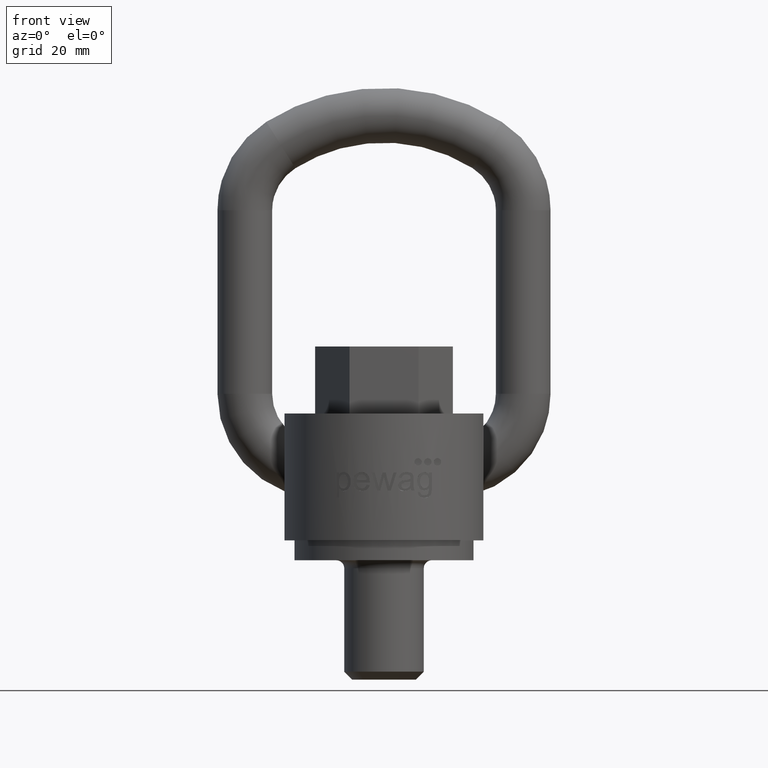
[diagram: clean part render]
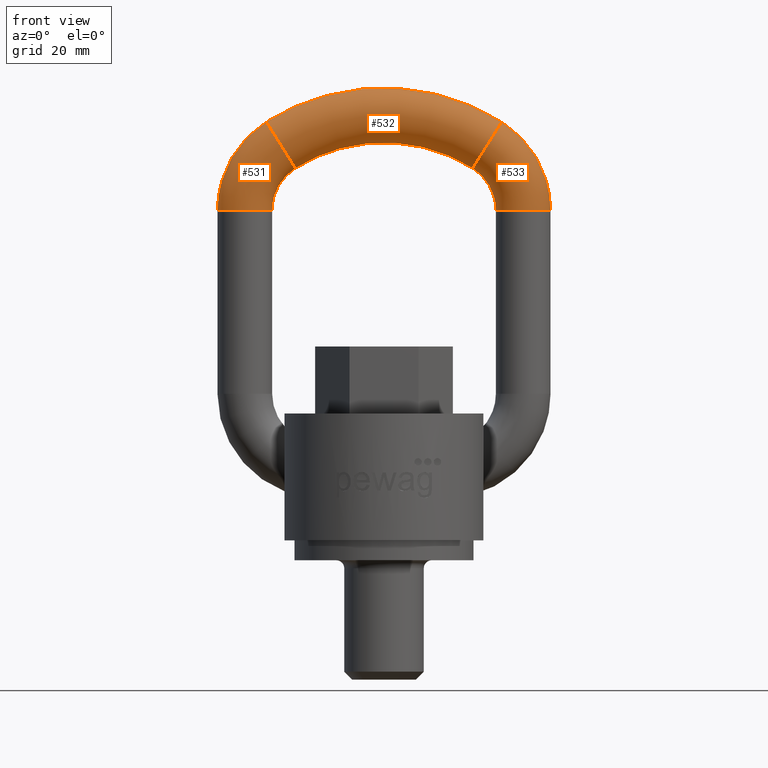
[diagram: same view with one multi-face feature highlighted, each face labeled with its STEP entity id]
A machine part, front view. The highlighted faces form ONE feature: a constant-radius fillet chain: 3 tangent blend faces with common blend radius 5.5 mm. The faces share edges in the B-rep.
Their STEP definitions:
[1] entity #532 (Torus):
#242=TOROIDAL_SURFACE('',#2546,39.,5.5);
#532=ADVANCED_FACE('',(#619,#620),#242,.T.);
#619=FACE_BOUND('',#781,.T.);
#620=FACE_BOUND('',#782,.T.);
#781=EDGE_LOOP('',(#1722));
#782=EDGE_LOOP('',(#1723));
#1117=CIRCLE('',#2543,5.5);
#1118=CIRCLE('',#2545,5.5);
#1722=ORIENTED_EDGE('',*,*,#2240,.T.);
#1723=ORIENTED_EDGE('',*,*,#2239,.F.);
#1935=VERTEX_POINT('',#5193);
#1936=VERTEX_POINT('',#5196);
#2239=EDGE_CURVE('',#1935,#1935,#1117,.T.);
#2240=EDGE_CURVE('',#1936,#1936,#1118,.T.);
#2543=AXIS2_PLACEMENT_3D('',#5192,#2975,#2976);
#2545=AXIS2_PLACEMENT_3D('',#5195,#2979,#2980);
#2546=AXIS2_PLACEMENT_3D('',#5197,#2981,#2982);
#2975=DIRECTION('',(-0.846797818814144,0.,-0.531914893617022));
#2976=DIRECTION('',(-0.531914893617021,0.,0.846797818814146));
#2979=DIRECTION('',(-0.846797818814145,0.,0.531914893617021));
#2980=DIRECTION('',(0.531914893617021,0.,0.846797818814146));
#2981=DIRECTION('',(0.,-1.,0.));
#2982=DIRECTION('',(0.,0.,-1.));
#5192=CARTESIAN_POINT('',(-20.7446808510639,19.,79.5251149337516));
#5193=CARTESIAN_POINT('',(-23.6702127659575,19.,84.1825029372294));
#5195=CARTESIAN_POINT('',(20.7446808510638,19.,79.5251149337516));
#5196=CARTESIAN_POINT('',(23.6702127659575,19.,84.1825029372294));
#5197=CARTESIAN_POINT('',(0.,19.,46.5));
[2] entity #533 (Torus):
#243=TOROIDAL_SURFACE('',#2548,15.5,5.5);
#533=ADVANCED_FACE('',(#621,#622),#243,.T.);
#621=FACE_BOUND('',#783,.T.);
#622=FACE_BOUND('',#784,.T.);
#783=EDGE_LOOP('',(#1724));
#784=EDGE_LOOP('',(#1725));
#1118=CIRCLE('',#2545,5.5);
#1119=CIRCLE('',#2547,5.5);
#1724=ORIENTED_EDGE('',*,*,#2240,.F.);
#1725=ORIENTED_EDGE('',*,*,#2241,.T.);
#1936=VERTEX_POINT('',#5196);
#1937=VERTEX_POINT('',#5199);
#2240=EDGE_CURVE('',#1936,#1936,#1118,.T.);
#2241=EDGE_CURVE('',#1937,#1937,#1119,.T.);
#2545=AXIS2_PLACEMENT_3D('',#5195,#2979,#2980);
#2547=AXIS2_PLACEMENT_3D('',#5198,#2983,#2984);
#2548=AXIS2_PLACEMENT_3D('',#5200,#2985,#2986);
#2979=DIRECTION('',(-0.846797818814145,0.,0.531914893617021));
#2980=DIRECTION('',(0.531914893617021,0.,0.846797818814146));
#2983=DIRECTION('',(6.77576192227313E-16,0.,1.));
#2984=DIRECTION('',(1.,0.,0.));
#2985=DIRECTION('',(0.,1.,0.));
#2986=DIRECTION('',(0.,0.,1.));
#5195=CARTESIAN_POINT('',(20.7446808510638,19.,79.5251149337516));
#5196=CARTESIAN_POINT('',(23.6702127659575,19.,84.1825029372294));
#5198=CARTESIAN_POINT('',(28.,19.,66.3997487421324));
#5199=CARTESIAN_POINT('',(33.5,19.,66.3997487421324));
#5200=CARTESIAN_POINT('',(12.5,19.,66.3997487421324));
[3] entity #531 (Torus):
#241=TOROIDAL_SURFACE('',#2544,15.5,5.5);
#531=ADVANCED_FACE('',(#617,#618),#241,.T.);
#617=FACE_BOUND('',#779,.T.);
#618=FACE_BOUND('',#780,.T.);
#779=EDGE_LOOP('',(#1720));
#780=EDGE_LOOP('',(#1721));
#1116=CIRCLE('',#2541,5.5);
#1117=CIRCLE('',#2543,5.5);
#1720=ORIENTED_EDGE('',*,*,#2239,.T.);
#1721=ORIENTED_EDGE('',*,*,#2238,.F.);
#1934=VERTEX_POINT('',#5190);
#1935=VERTEX_POINT('',#5193);
#2238=EDGE_CURVE('',#1934,#1934,#1116,.T.);
#2239=EDGE_CURVE('',#1935,#1935,#1117,.T.);
#2541=AXIS2_PLACEMENT_3D('',#5189,#2971,#2972);
#2543=AXIS2_PLACEMENT_3D('',#5192,#2975,#2976);
#2544=AXIS2_PLACEMENT_3D('',#5194,#2977,#2978);
#2971=DIRECTION('',(3.33066907387547E-16,0.,-1.));
#2972=DIRECTION('',(-1.,0.,0.));
#2975=DIRECTION('',(-0.846797818814144,0.,-0.531914893617022));
#2976=DIRECTION('',(-0.531914893617021,0.,0.846797818814146));
#2977=DIRECTION('',(0.,-1.,0.));
#2978=DIRECTION('',(0.,0.,-1.));
#5189=CARTESIAN_POINT('',(-28.,19.,66.3997487421324));
#5190=CARTESIAN_POINT('',(-33.5,19.,66.3997487421324));
#5192=CARTESIAN_POINT('',(-20.7446808510639,19.,79.5251149337516));
#5193=CARTESIAN_POINT('',(-23.6702127659575,19.,84.1825029372294));
#5194=CARTESIAN_POINT('',(-12.5,19.,66.3997487421324));